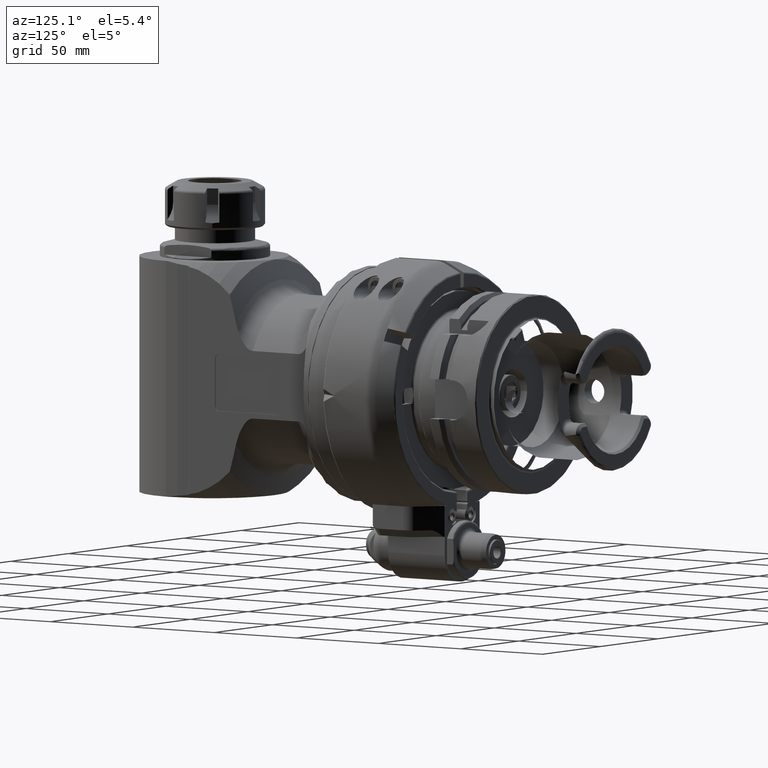
[diagram: clean part render]
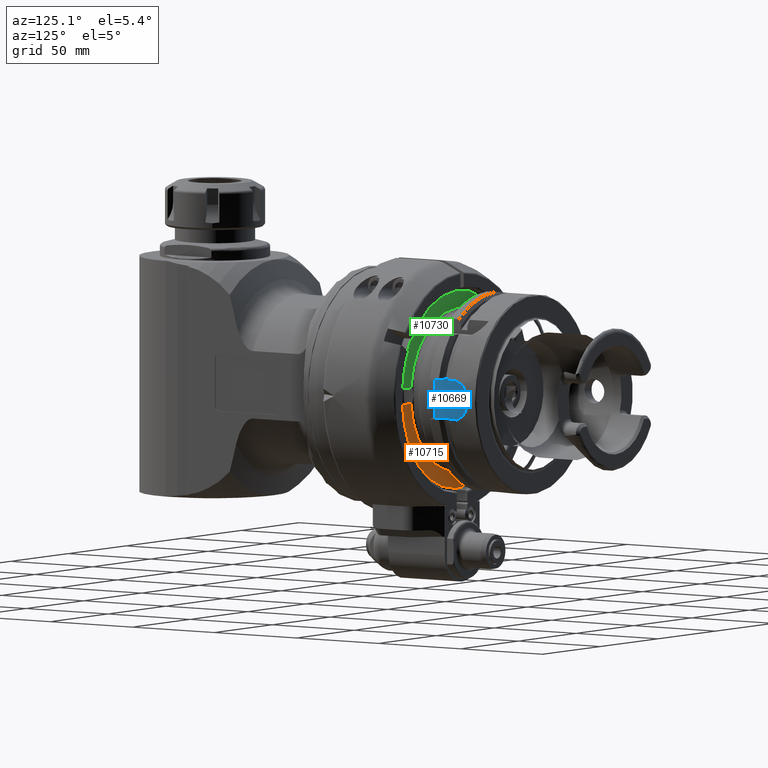
[diagram: same view with three faces highlighted in distinct colors, each labeled with its STEP entity id]
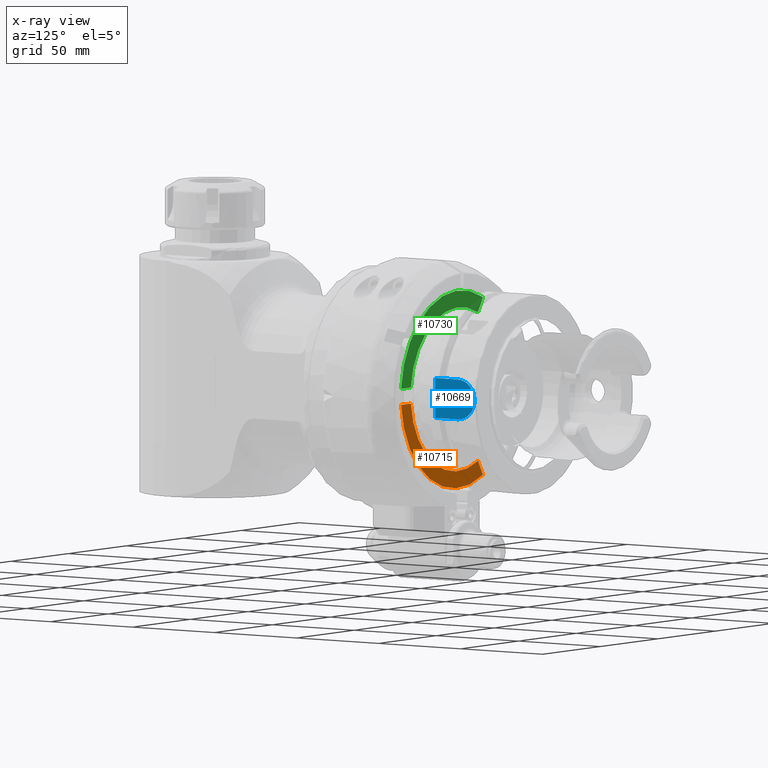
[diagram: x-ray of the same camera — body ghosted, the three highlighted faces saturated]
A machine part, auxiliary view with three faces highlighted in distinct colors.
The next image is the same camera in x-ray (body ghosted, the three faces saturated) — at least one of them is partly hidden behind the body in this view.
Their STEP definitions:

[orange] entity #10715 — the highlighted planar face has unit normal (0, 1, 0).
#943=LINE('',#21868,#1617);
#947=LINE('',#21905,#1621);
#1617=VECTOR('',#14274,8.533592450159);
#1621=VECTOR('',#14296,8.5256605650184);
#2279=PLANE('',#11823);
#2777=FACE_OUTER_BOUND('',#3471,.T.);
#3471=EDGE_LOOP('',(#8958,#8959,#8960,#8961));
#4160=CIRCLE('',#11819,49.5);
#4162=CIRCLE('',#11824,41.);
#5024=VERTEX_POINT('',#21865);
#5025=VERTEX_POINT('',#21867);
#5029=VERTEX_POINT('',#21896);
#5031=VERTEX_POINT('',#21904);
#6408=EDGE_CURVE('',#5025,#5024,#943,.T.);
#6416=EDGE_CURVE('',#5024,#5029,#4160,.T.);
#6419=EDGE_CURVE('',#5029,#5031,#947,.T.);
#6423=EDGE_CURVE('',#5031,#5025,#4162,.T.);
#8958=ORIENTED_EDGE('',*,*,#6423,.T.);
#8959=ORIENTED_EDGE('',*,*,#6408,.T.);
#8960=ORIENTED_EDGE('',*,*,#6416,.T.);
#8961=ORIENTED_EDGE('',*,*,#6419,.T.);
#10715=ADVANCED_FACE('',(#2777),#2279,.T.);
#11819=AXIS2_PLACEMENT_3D('',#21898,#14287,#14288);
#11823=AXIS2_PLACEMENT_3D('',#21918,#14299,#14300);
#11824=AXIS2_PLACEMENT_3D('',#21919,#14301,#14302);
#14274=DIRECTION('',(1.,-1.18235161882E-13,1.252813946808E-12));
#14287=DIRECTION('center_axis',(0.,1.,0.));
#14288=DIRECTION('ref_axis',(0.996729679540102,0.,-0.0808080808080802));
#14296=DIRECTION('',(0.500000000001177,-1.60849410970392E-13,0.866025403783759));
#14299=DIRECTION('center_axis',(0.,1.,0.));
#14300=DIRECTION('ref_axis',(-1.,0.,0.));
#14301=DIRECTION('center_axis',(0.,-1.,0.));
#14302=DIRECTION('ref_axis',(-0.424245838651586,0.,-0.905547054761271));
#21865=CARTESIAN_POINT('',(49.33811913724,39.99999976923,-4.));
#21867=CARTESIAN_POINT('',(40.80441152621,39.99999976923,-4.));
#21868=CARTESIAN_POINT('',(40.80452668708,39.99999976923,-4.000000000012));
#21896=CARTESIAN_POINT('',(-21.65696487801,39.99999976924,-44.51096350645));
#21898=CARTESIAN_POINT('Origin',(0.,39.99999976923,0.));
#21904=CARTESIAN_POINT('',(-17.39407938471,39.99999976923,-37.12742924521));
#21905=CARTESIAN_POINT('',(-21.65696487801,39.99999976924,-44.51096350645));
#21918=CARTESIAN_POINT('Origin',(-31.7,39.99999976924,0.));
#21919=CARTESIAN_POINT('Origin',(0.,39.99999976923,0.));

[blue] entity #10669 — the highlighted planar face has unit normal (-1, 0, 0).
#894=LINE('',#21228,#1568);
#896=LINE('',#21235,#1570);
#897=LINE('',#21236,#1571);
#1568=VECTOR('',#14057,13.99999999999);
#1570=VECTOR('',#14065,13.99999999999);
#1571=VECTOR('',#14066,20.);
#2259=PLANE('',#11732);
#2731=FACE_OUTER_BOUND('',#3422,.T.);
#3422=EDGE_LOOP('',(#8704,#8705,#8706,#8707));
#4117=CIRCLE('',#11731,10.);
#4935=VERTEX_POINT('',#21201);
#4943=VERTEX_POINT('',#21226);
#4944=VERTEX_POINT('',#21230);
#4945=VERTEX_POINT('',#21234);
#6286=EDGE_CURVE('',#4935,#4943,#894,.T.);
#6287=EDGE_CURVE('',#4944,#4935,#4117,.T.);
#6289=EDGE_CURVE('',#4945,#4944,#896,.T.);
#6290=EDGE_CURVE('',#4943,#4945,#897,.T.);
#8704=ORIENTED_EDGE('',*,*,#6289,.T.);
#8705=ORIENTED_EDGE('',*,*,#6287,.T.);
#8706=ORIENTED_EDGE('',*,*,#6286,.T.);
#8707=ORIENTED_EDGE('',*,*,#6290,.T.);
#10669=ADVANCED_FACE('',(#2731),#2259,.F.);
#11731=AXIS2_PLACEMENT_3D('',#21231,#14060,#14061);
#11732=AXIS2_PLACEMENT_3D('',#21233,#14063,#14064);
#14057=DIRECTION('',(-1.192696735026E-13,-1.,-3.553982505116E-13));
#14060=DIRECTION('center_axis',(1.,-3.552713678797E-13,0.));
#14061=DIRECTION('ref_axis',(3.552713678797E-13,1.,3.554214180616E-13));
#14063=DIRECTION('center_axis',(-1.,3.552713678797E-13,0.));
#14064=DIRECTION('ref_axis',(-3.552713678797E-13,-1.,-3.552713678797E-13));
#14065=DIRECTION('',(1.187621429771E-13,1.,3.553982505116E-13));
#14066=DIRECTION('',(0.,3.559819106158E-13,-1.));
#21201=CARTESIAN_POINT('',(44.,70.99999976922,10.00000000001));
#21226=CARTESIAN_POINT('',(44.,56.99999976922,10.00000000001));
#21228=CARTESIAN_POINT('',(44.,70.99999976922,10.00000000001));
#21230=CARTESIAN_POINT('',(44.,70.99999976922,-9.999999999989));
#21231=CARTESIAN_POINT('Origin',(44.,70.99999976922,1.144280733206E-11));
#21233=CARTESIAN_POINT('Origin',(44.,36.09999976922,-9.561634069449E-13));
#21234=CARTESIAN_POINT('',(44.,56.99999976923,-9.999999999994));
#21235=CARTESIAN_POINT('',(44.,56.99999976923,-9.999999999994));
#21236=CARTESIAN_POINT('',(44.,56.99999976922,10.00000000001));

[green] entity #10730 — the highlighted planar face has unit normal (0, 1, 0).
#965=LINE('',#22025,#1639);
#966=LINE('',#22029,#1640);
#1639=VECTOR('',#14370,8.5256661337924);
#1640=VECTOR('',#14375,8.533588862434);
#2288=PLANE('',#11851);
#2792=FACE_OUTER_BOUND('',#3489,.T.);
#3489=EDGE_LOOP('',(#9042,#9043,#9044,#9045));
#4157=CIRCLE('',#11811,41.);
#4174=CIRCLE('',#11852,49.5);
#5015=VERTEX_POINT('',#21820);
#5016=VERTEX_POINT('',#21829);
#5052=VERTEX_POINT('',#22023);
#5053=VERTEX_POINT('',#22027);
#6398=EDGE_CURVE('',#5016,#5015,#4157,.T.);
#6455=EDGE_CURVE('',#5015,#5052,#965,.T.);
#6456=EDGE_CURVE('',#5052,#5053,#4174,.T.);
#6457=EDGE_CURVE('',#5053,#5016,#966,.T.);
#9042=ORIENTED_EDGE('',*,*,#6398,.T.);
#9043=ORIENTED_EDGE('',*,*,#6455,.T.);
#9044=ORIENTED_EDGE('',*,*,#6456,.T.);
#9045=ORIENTED_EDGE('',*,*,#6457,.T.);
#10730=ADVANCED_FACE('',(#2792),#2288,.T.);
#11811=AXIS2_PLACEMENT_3D('',#21830,#14264,#14265);
#11851=AXIS2_PLACEMENT_3D('',#22026,#14371,#14372);
#11852=AXIS2_PLACEMENT_3D('',#22028,#14373,#14374);
#14264=DIRECTION('center_axis',(0.,-1.,0.));
#14265=DIRECTION('ref_axis',(0.995229549419667,0.,0.0975609756097567));
#14370=DIRECTION('',(-0.500000000001177,-4.2504220731948E-14,0.866025403783759));
#14371=DIRECTION('center_axis',(0.,1.,0.));
#14372=DIRECTION('ref_axis',(-1.,0.,0.));
#14373=DIRECTION('center_axis',(0.,1.,0.));
#14374=DIRECTION('ref_axis',(-0.437514441980005,0.,0.899211383968711));
#14375=DIRECTION('',(-1.,1.19067853926E-13,1.261661298331E-12));
#21820=CARTESIAN_POINT('',(-17.3940794053828,39.99999976923,37.1274292750045));
#21829=CARTESIAN_POINT('',(40.8044115688372,39.9999997692303,3.99999999597774));
#21830=CARTESIAN_POINT('Origin',(0.,39.99999976923,0.));
#22023=CARTESIAN_POINT('',(-21.65696487801,39.99999976923,44.51096350645));
#22025=CARTESIAN_POINT('',(-17.39413181111,39.99999976923,37.12752005041));
#22026=CARTESIAN_POINT('Origin',(-31.7,39.99999976924,0.));
#22027=CARTESIAN_POINT('',(49.33811913723,39.99999976923,3.999999999999));
#22028=CARTESIAN_POINT('Origin',(0.,39.99999976923,0.));
#22029=CARTESIAN_POINT('',(49.33811913723,39.99999976923,3.999999999999));